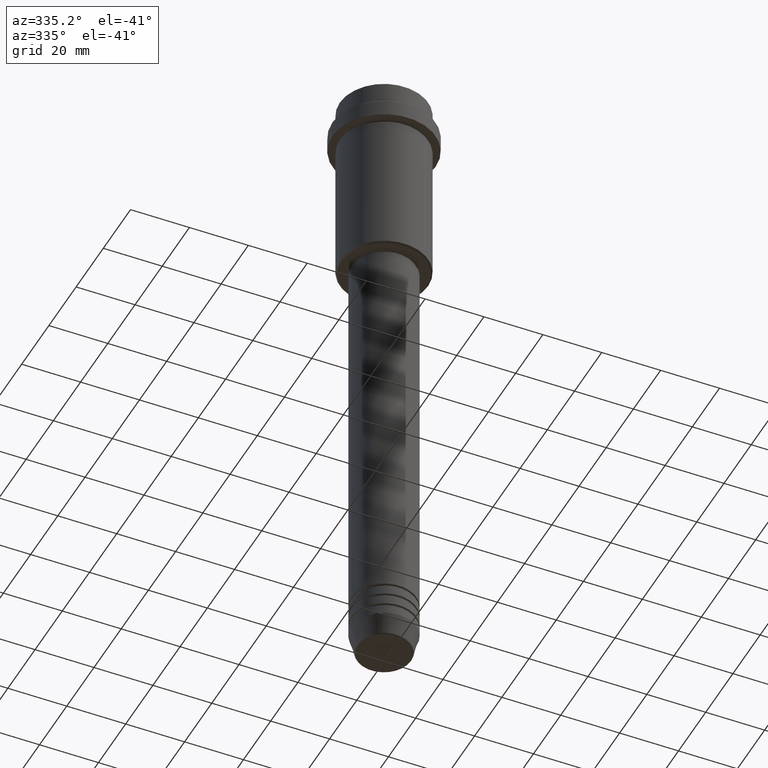
[diagram: clean part render]
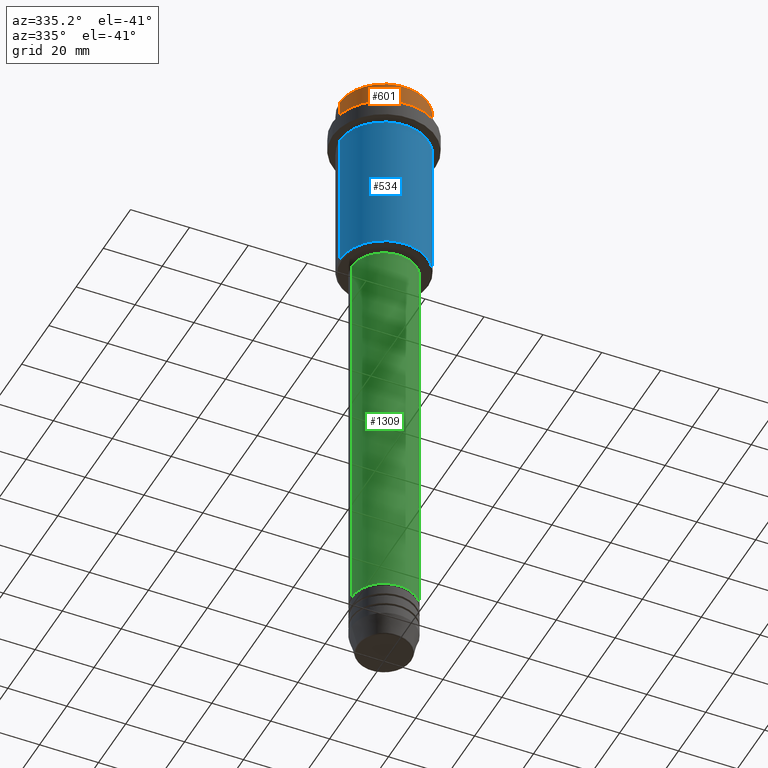
[diagram: same view with three faces highlighted in distinct colors, each labeled with its STEP entity id]
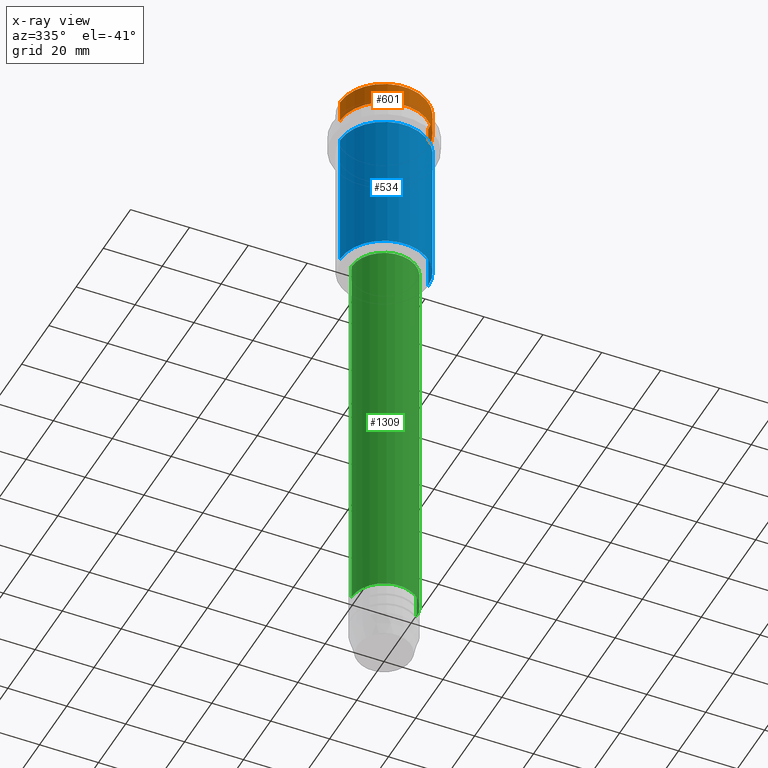
[diagram: x-ray of the same camera — body ghosted, the three highlighted faces saturated]
A machine part, auxiliary view with three faces highlighted in distinct colors.
The next image is the same camera in x-ray (body ghosted, the three faces saturated) — at least one of them is partly hidden behind the body in this view.
Their STEP definitions:

[orange] entity #601 — the highlighted cylindrical surface (partial cylindrical patch) has radius 15 mm, axis along (-0, -0, 1).
#41 = EDGE_CURVE ( 'NONE', #335, #994, #332, .T. ) ;
#53 = EDGE_CURVE ( 'NONE', #231, #994, #571, .T. ) ;
#72 = VECTOR ( 'NONE', #995, 1000.000000000000000 ) ;
#166 = DIRECTION ( 'NONE',  ( -0.000000000000000000, -0.000000000000000000, 1.000000000000000000 ) ) ;
#199 = ORIENTED_EDGE ( 'NONE', *, *, #386, .T. ) ;
#227 = DIRECTION ( 'NONE',  ( 1.000000000000000000, 0.000000000000000000, 0.000000000000000000 ) ) ;
#231 = VERTEX_POINT ( 'NONE', #1151 ) ;
#257 = ORIENTED_EDGE ( 'NONE', *, *, #1169, .T. ) ;
#262 = CARTESIAN_POINT ( 'NONE',  ( 15.00000000000000000, 0.000000000000000000, -0.5000000000000108802 ) ) ;
#332 = CIRCLE ( 'NONE', #699, 15.00000000000000000 ) ;
#335 = VERTEX_POINT ( 'NONE', #262 ) ;
#363 = AXIS2_PLACEMENT_3D ( 'NONE', #553, #674, #1328 ) ;
#386 = EDGE_CURVE ( 'NONE', #629, #335, #1213, .T. ) ;
#399 = CARTESIAN_POINT ( 'NONE',  ( 0.000000000000000000, 0.000000000000000000, 0.000000000000000000 ) ) ;
#494 = FACE_OUTER_BOUND ( 'NONE', #1355, .T. ) ;
#544 = CARTESIAN_POINT ( 'NONE',  ( -15.00000000000000000, 1.836970198721029589E-15, -0.5000000000000108802 ) ) ;
#553 = CARTESIAN_POINT ( 'NONE',  ( 0.000000000000000000, 0.000000000000000000, -7.999999999999998224 ) ) ;
#571 = LINE ( 'NONE', #673, #72 ) ;
#597 = AXIS2_PLACEMENT_3D ( 'NONE', #399, #166, #1149 ) ;
#601 = ADVANCED_FACE ( 'NONE', ( #494 ), #609, .T. ) ;
#609 = CYLINDRICAL_SURFACE ( 'NONE', #597, 15.00000000000000000 ) ;
#625 = CARTESIAN_POINT ( 'NONE',  ( 15.00000000000000000, 0.000000000000000000, -7.999999999999998224 ) ) ;
#629 = VERTEX_POINT ( 'NONE', #625 ) ;
#655 = ORIENTED_EDGE ( 'NONE', *, *, #53, .F. ) ;
#673 = CARTESIAN_POINT ( 'NONE',  ( -15.00000000000000000, 1.836970198721029589E-15, 0.000000000000000000 ) ) ;
#674 = DIRECTION ( 'NONE',  ( -0.000000000000000000, -0.000000000000000000, 1.000000000000000000 ) ) ;
#699 = AXIS2_PLACEMENT_3D ( 'NONE', #778, #1194, #227 ) ;
#778 = CARTESIAN_POINT ( 'NONE',  ( 0.000000000000000000, 0.000000000000000000, -0.5000000000000108802 ) ) ;
#812 = CARTESIAN_POINT ( 'NONE',  ( 15.00000000000000000, 0.000000000000000000, 0.000000000000000000 ) ) ;
#818 = ORIENTED_EDGE ( 'NONE', *, *, #41, .T. ) ;
#994 = VERTEX_POINT ( 'NONE', #544 ) ;
#995 = DIRECTION ( 'NONE',  ( -0.000000000000000000, -0.000000000000000000, 1.000000000000000000 ) ) ;
#1028 = DIRECTION ( 'NONE',  ( -0.000000000000000000, -0.000000000000000000, 1.000000000000000000 ) ) ;
#1111 = VECTOR ( 'NONE', #1028, 1000.000000000000000 ) ;
#1149 = DIRECTION ( 'NONE',  ( 1.000000000000000000, 0.000000000000000000, 0.000000000000000000 ) ) ;
#1151 = CARTESIAN_POINT ( 'NONE',  ( -15.00000000000000000, 1.836970198721029589E-15, -7.999999999999998224 ) ) ;
#1156 = CIRCLE ( 'NONE', #363, 15.00000000000000000 ) ;
#1169 = EDGE_CURVE ( 'NONE', #231, #629, #1156, .T. ) ;
#1194 = DIRECTION ( 'NONE',  ( 0.000000000000000000, 0.000000000000000000, -1.000000000000000000 ) ) ;
#1213 = LINE ( 'NONE', #812, #1111 ) ;
#1328 = DIRECTION ( 'NONE',  ( 1.000000000000000000, 0.000000000000000000, 0.000000000000000000 ) ) ;
#1355 = EDGE_LOOP ( 'NONE', ( #655, #257, #199, #818 ) ) ;

[blue] entity #534 — the highlighted cylindrical surface (partial cylindrical patch) has radius 15 mm, axis along (-0, -0, 1).
#2 = ORIENTED_EDGE ( 'NONE', *, *, #709, .T. ) ;
#152 = DIRECTION ( 'NONE',  ( -0.000000000000000000, -0.000000000000000000, 1.000000000000000000 ) ) ;
#174 = LINE ( 'NONE', #711, #1295 ) ;
#189 = EDGE_CURVE ( 'NONE', #539, #1237, #771, .T. ) ;
#207 = DIRECTION ( 'NONE',  ( -0.000000000000000000, -0.000000000000000000, 1.000000000000000000 ) ) ;
#222 = EDGE_LOOP ( 'NONE', ( #1234, #1020, #2, #578 ) ) ;
#232 = AXIS2_PLACEMENT_3D ( 'NONE', #1131, #152, #490 ) ;
#271 = CYLINDRICAL_SURFACE ( 'NONE', #232, 15.00000000000000000 ) ;
#339 = CARTESIAN_POINT ( 'NONE',  ( 0.000000000000000000, 0.000000000000000000, -64.49999999999995737 ) ) ;
#453 = VERTEX_POINT ( 'NONE', #546 ) ;
#466 = EDGE_CURVE ( 'NONE', #453, #701, #551, .T. ) ;
#490 = DIRECTION ( 'NONE',  ( 1.000000000000000000, 0.000000000000000000, 0.000000000000000000 ) ) ;
#516 = LINE ( 'NONE', #867, #1405 ) ;
#534 = ADVANCED_FACE ( 'NONE', ( #585 ), #271, .T. ) ;
#539 = VERTEX_POINT ( 'NONE', #875 ) ;
#546 = CARTESIAN_POINT ( 'NONE',  ( -15.00000000000000000, 1.836970198721029589E-15, -64.49999999999995737 ) ) ;
#551 = CIRCLE ( 'NONE', #1385, 15.00000000000000000 ) ;
#578 = ORIENTED_EDGE ( 'NONE', *, *, #189, .F. ) ;
#585 = FACE_OUTER_BOUND ( 'NONE', #222, .T. ) ;
#630 = CARTESIAN_POINT ( 'NONE',  ( 0.000000000000000000, 0.000000000000000000, -16.00000000000000000 ) ) ;
#665 = CARTESIAN_POINT ( 'NONE',  ( 15.00000000000000178, 0.000000000000000000, -16.00000000000000000 ) ) ;
#701 = VERTEX_POINT ( 'NONE', #1417 ) ;
#709 = EDGE_CURVE ( 'NONE', #701, #1237, #174, .T. ) ;
#711 = CARTESIAN_POINT ( 'NONE',  ( 15.00000000000000000, 0.000000000000000000, 0.000000000000000000 ) ) ;
#771 = CIRCLE ( 'NONE', #1121, 15.00000000000000178 ) ;
#867 = CARTESIAN_POINT ( 'NONE',  ( -15.00000000000000000, 1.836970198721029589E-15, 0.000000000000000000 ) ) ;
#875 = CARTESIAN_POINT ( 'NONE',  ( -15.00000000000000355, 1.836970198721029983E-15, -16.00000000000000000 ) ) ;
#1020 = ORIENTED_EDGE ( 'NONE', *, *, #466, .T. ) ;
#1054 = EDGE_CURVE ( 'NONE', #453, #539, #516, .T. ) ;
#1119 = DIRECTION ( 'NONE',  ( -0.000000000000000000, -0.000000000000000000, 1.000000000000000000 ) ) ;
#1121 = AXIS2_PLACEMENT_3D ( 'NONE', #630, #1310, #1329 ) ;
#1131 = CARTESIAN_POINT ( 'NONE',  ( 0.000000000000000000, 0.000000000000000000, 0.000000000000000000 ) ) ;
#1171 = DIRECTION ( 'NONE',  ( -0.000000000000000000, -0.000000000000000000, 1.000000000000000000 ) ) ;
#1234 = ORIENTED_EDGE ( 'NONE', *, *, #1054, .F. ) ;
#1237 = VERTEX_POINT ( 'NONE', #665 ) ;
#1295 = VECTOR ( 'NONE', #1119, 1000.000000000000000 ) ;
#1310 = DIRECTION ( 'NONE',  ( -0.000000000000000000, -0.000000000000000000, 1.000000000000000000 ) ) ;
#1329 = DIRECTION ( 'NONE',  ( 1.000000000000000000, 0.000000000000000000, 0.000000000000000000 ) ) ;
#1385 = AXIS2_PLACEMENT_3D ( 'NONE', #339, #207, #1397 ) ;
#1397 = DIRECTION ( 'NONE',  ( -1.000000000000000000, 0.000000000000000000, 0.000000000000000000 ) ) ;
#1405 = VECTOR ( 'NONE', #1171, 1000.000000000000000 ) ;
#1417 = CARTESIAN_POINT ( 'NONE',  ( 15.00000000000000000, 0.000000000000000000, -64.49999999999995737 ) ) ;

[green] entity #1309 — the highlighted cylindrical surface (edge-blend (fillet) strip) has radius 11 mm, axis along (-0, -0, 1).
#31 = DIRECTION ( 'NONE',  ( 1.000000000000000000, 0.000000000000000000, 0.000000000000000000 ) ) ;
#43 = DIRECTION ( 'NONE',  ( -0.000000000000000000, -0.000000000000000000, 1.000000000000000000 ) ) ;
#63 = ORIENTED_EDGE ( 'NONE', *, *, #1038, .T. ) ;
#70 = DIRECTION ( 'NONE',  ( -0.000000000000000000, -0.000000000000000000, 1.000000000000000000 ) ) ;
#100 = CARTESIAN_POINT ( 'NONE',  ( 10.99999999999999822, 0.000000000000000000, -66.00000000000000000 ) ) ;
#147 = VERTEX_POINT ( 'NONE', #201 ) ;
#201 = CARTESIAN_POINT ( 'NONE',  ( 11.00000000000000000, 0.000000000000000000, -200.9999999999999147 ) ) ;
#248 = CARTESIAN_POINT ( 'NONE',  ( 0.000000000000000000, 0.000000000000000000, -200.9999999999999147 ) ) ;
#269 = DIRECTION ( 'NONE',  ( 1.000000000000000000, 0.000000000000000000, 0.000000000000000000 ) ) ;
#284 = CIRCLE ( 'NONE', #1273, 11.00000000000000000 ) ;
#320 = CARTESIAN_POINT ( 'NONE',  ( -10.99999999999999822, 1.347111479062088207E-15, -66.00000000000000000 ) ) ;
#382 = CYLINDRICAL_SURFACE ( 'NONE', #1219, 11.00000000000000000 ) ;
#397 = EDGE_CURVE ( 'NONE', #643, #147, #284, .T. ) ;
#433 = AXIS2_PLACEMENT_3D ( 'NONE', #511, #937, #31 ) ;
#486 = DIRECTION ( 'NONE',  ( 1.000000000000000000, 0.000000000000000000, 0.000000000000000000 ) ) ;
#487 = VERTEX_POINT ( 'NONE', #320 ) ;
#506 = CARTESIAN_POINT ( 'NONE',  ( -11.00000000000000000, 1.347111479062088405E-15, 0.000000000000000000 ) ) ;
#511 = CARTESIAN_POINT ( 'NONE',  ( 0.000000000000000000, 0.000000000000000000, -66.00000000000000000 ) ) ;
#568 = ORIENTED_EDGE ( 'NONE', *, *, #833, .F. ) ;
#616 = CARTESIAN_POINT ( 'NONE',  ( 0.000000000000000000, 0.000000000000000000, 0.000000000000000000 ) ) ;
#617 = CIRCLE ( 'NONE', #433, 10.99999999999999822 ) ;
#643 = VERTEX_POINT ( 'NONE', #1320 ) ;
#833 = EDGE_CURVE ( 'NONE', #643, #487, #967, .T. ) ;
#937 = DIRECTION ( 'NONE',  ( -0.000000000000000000, -0.000000000000000000, 1.000000000000000000 ) ) ;
#967 = LINE ( 'NONE', #506, #1360 ) ;
#981 = VERTEX_POINT ( 'NONE', #100 ) ;
#1038 = EDGE_CURVE ( 'NONE', #147, #981, #1055, .T. ) ;
#1050 = DIRECTION ( 'NONE',  ( -0.000000000000000000, -0.000000000000000000, 1.000000000000000000 ) ) ;
#1055 = LINE ( 'NONE', #1400, #1218 ) ;
#1218 = VECTOR ( 'NONE', #1272, 1000.000000000000000 ) ;
#1219 = AXIS2_PLACEMENT_3D ( 'NONE', #616, #1050, #269 ) ;
#1238 = ORIENTED_EDGE ( 'NONE', *, *, #1325, .F. ) ;
#1250 = FACE_OUTER_BOUND ( 'NONE', #1327, .T. ) ;
#1272 = DIRECTION ( 'NONE',  ( -0.000000000000000000, -0.000000000000000000, 1.000000000000000000 ) ) ;
#1273 = AXIS2_PLACEMENT_3D ( 'NONE', #248, #43, #486 ) ;
#1309 = ADVANCED_FACE ( 'NONE', ( #1250 ), #382, .T. ) ;
#1320 = CARTESIAN_POINT ( 'NONE',  ( -11.00000000000000000, 1.347111479062088405E-15, -200.9999999999999147 ) ) ;
#1325 = EDGE_CURVE ( 'NONE', #487, #981, #617, .T. ) ;
#1327 = EDGE_LOOP ( 'NONE', ( #568, #1359, #63, #1238 ) ) ;
#1359 = ORIENTED_EDGE ( 'NONE', *, *, #397, .T. ) ;
#1360 = VECTOR ( 'NONE', #70, 1000.000000000000000 ) ;
#1400 = CARTESIAN_POINT ( 'NONE',  ( 11.00000000000000000, 0.000000000000000000, 0.000000000000000000 ) ) ;